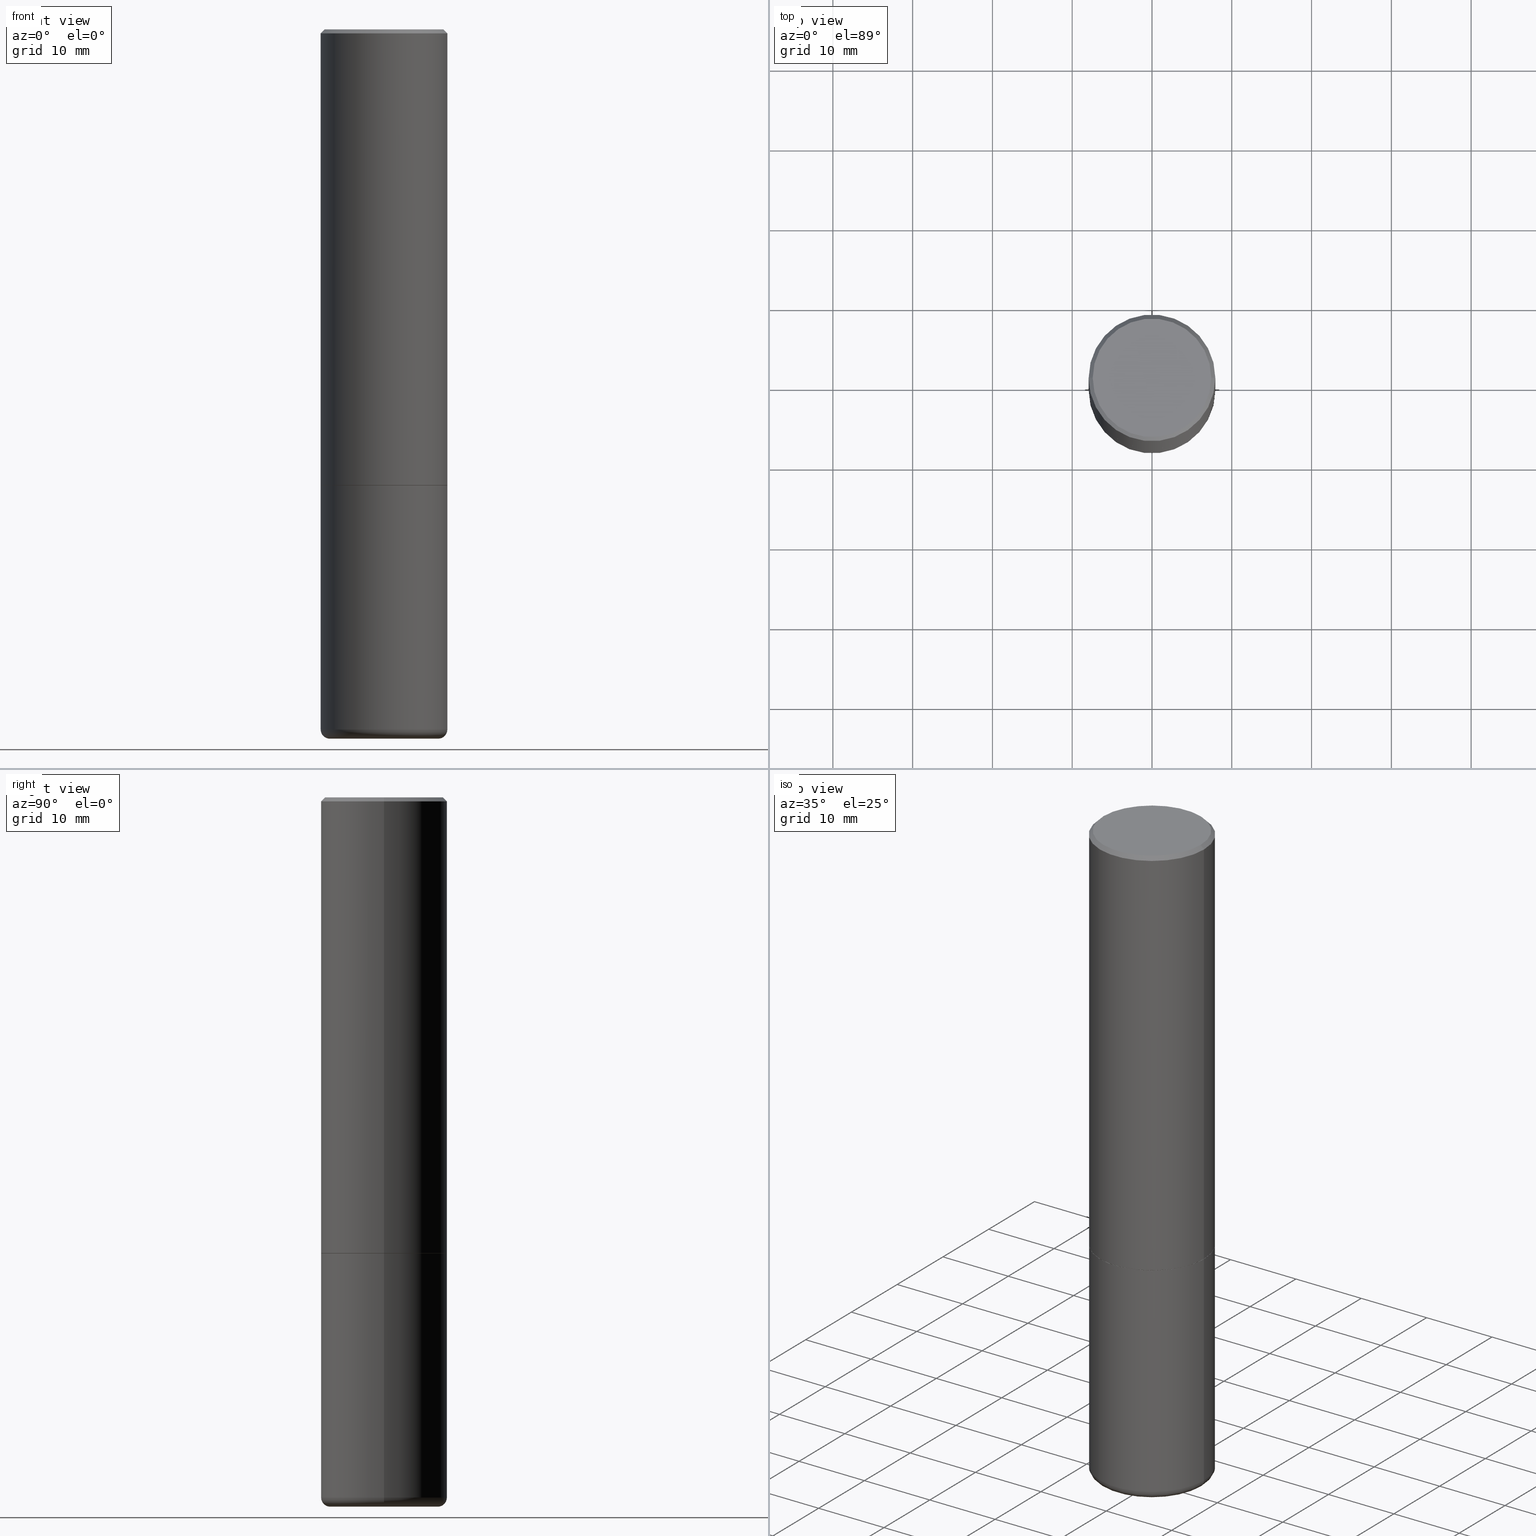
[diagram: canonical four-view strip — front | top / right | iso, engineering-drawing reading convention]
A machine part, canonical four-view strip (front | top / right | iso — engineering-drawing reading convention). The complete STEP part file that produces these views, byte-faithful:
ISO-10303-21;
HEADER;
FILE_DESCRIPTION (( 'STEP AP203' ),
    '1' );
FILE_NAME ('38080.STEP',
    '2023-03-22T20:16:06',
    ( '' ),
    ( '' ),
    'SwSTEP 2.0',
    'SolidWorks 2022',
    '' );
FILE_SCHEMA (( 'CONFIG_CONTROL_DESIGN' ));
ENDSEC;

DATA;
#1 = CARTESIAN_POINT ( 'NONE',  ( 2.042516583223231356E-15, 0.2924999999999998157, -1.019124035366569212E-15 ) ) ;
#2 = EDGE_CURVE ( 'NONE', #261, #56, #245, .T. ) ;
#3 = CARTESIAN_POINT ( 'NONE',  ( 0.3114999999999999991, -1.003102588649634920E-14, -2.249999999999999556 ) ) ;
#4 = APPROVAL_PERSON_ORGANIZATION ( #354, #66, #49 ) ;
#5 = DIRECTION ( 'NONE',  ( -2.445468806185136877E-29, 3.491481338843145188E-15, 1.000000000000000000 ) ) ;
#6 = APPROVAL ( #267, 'UNSPECIFIED' ) ;
#7 = ORIENTED_EDGE ( 'NONE', *, *, #10, .F. ) ;
#8 = CARTESIAN_POINT ( 'NONE',  ( -0.2924999999999998157, 2.077431396611662611E-15, 4.268512490086005323E-18 ) ) ;
#9 = DIRECTION ( 'NONE',  ( 2.445468806185136597E-29, -3.491481338843145583E-15, -1.000000000000000000 ) ) ;
#10 = EDGE_CURVE ( 'NONE', #17, #261, #299, .T. ) ;
#11 = DIRECTION ( 'NONE',  ( -2.445468806185136597E-29, 3.491481338843145583E-15, 1.000000000000000000 ) ) ;
#12 = ORIENTED_EDGE ( 'NONE', *, *, #169, .F. ) ;
#13 = ORIENTED_EDGE ( 'NONE', *, *, #79, .F. ) ;
#14 = DIRECTION ( 'NONE',  ( -2.445468806185136597E-29, 3.491481338843145583E-15, 1.000000000000000000 ) ) ;
#15 = DIRECTION ( 'NONE',  ( 0.9986295347545742773, -7.033825938272000278E-15, -0.05233595624293731902 ) ) ;
#16 = CIRCLE ( 'NONE', #168, 0.2651448819690678804 ) ;
#17 = VERTEX_POINT ( 'NONE', #165 ) ;
#18 = CARTESIAN_POINT ( 'NONE',  ( 0.000000000000000000, 0.000000000000000000, 0.000000000000000000 ) ) ;
#19 = LINE ( 'NONE', #301, #210 ) ;
#20 = PERSON_AND_ORGANIZATION ( #30, #316 ) ;
#21 = EDGE_LOOP ( 'NONE', ( #350, #216 ) ) ;
#22 = EDGE_CURVE ( 'NONE', #50, #425, #19, .T. ) ;
#23 = AXIS2_PLACEMENT_3D ( 'NONE', #408, #340, #273 ) ;
#24 = PRODUCT_DEFINITION_FORMATION_WITH_SPECIFIED_SOURCE ( 'ANY', '', #109, .NOT_KNOWN. ) ;
#25 = CARTESIAN_POINT ( 'NONE',  ( -0.2675000000000000155, -1.016258153046714615E-14, -3.455061670936044216 ) ) ;
#26 = APPROVAL_STATUS ( 'not_yet_approved' ) ;
#27 = CYLINDRICAL_SURFACE ( 'NONE', #352, 0.3124999999999998890 ) ;
#28 = CYLINDRICAL_SURFACE ( 'NONE', #137, 0.3125000000000000000 ) ;
#29 = EDGE_CURVE ( 'NONE', #56, #50, #180, .T. ) ;
#30 = PERSON ( 'UNSPECIFIED', 'UNSPECIFIED', 'UNSPECIFIED', ('UNSPECIFIED'), ('UNSPECIFIED'), ('UNSPECIFIED') ) ;
#31 = FACE_OUTER_BOUND ( 'NONE', #413, .T. ) ;
#32 = AXIS2_PLACEMENT_3D ( 'NONE', #253, #9, #291 ) ;
#33 = CALENDAR_DATE ( 2023, 22, 3 ) ;
#34 = DIRECTION ( 'NONE',  ( -2.445468806185136597E-29, 3.491481338843145583E-15, 1.000000000000000000 ) ) ;
#35 = EDGE_CURVE ( 'NONE', #50, #56, #375, .T. ) ;
#36 = CARTESIAN_POINT ( 'NONE',  ( 5.502304813916556222E-29, -7.855833012397076871E-15, -2.249999999999999556 ) ) ;
#37 = PRODUCT_DEFINITION ( 'UNKNOWN', '', #24, #69 ) ;
#38 = CARTESIAN_POINT ( 'NONE',  ( 5.499859345110370619E-29, -7.852341531058232286E-15, -2.248999999999999222 ) ) ;
#39 = AXIS2_PLACEMENT_3D ( 'NONE', #119, #259, #391 ) ;
#40 = ORIENTED_EDGE ( 'NONE', *, *, #435, .F. ) ;
#41 = AXIS2_PLACEMENT_3D ( 'NONE', #431, #161, #331 ) ;
#42 = DIRECTION ( 'NONE',  ( 1.000000000000000000, -6.982962677686265922E-15, 0.000000000000000000 ) ) ;
#43 = ORIENTED_EDGE ( 'NONE', *, *, #240, .T. ) ;
#44 = CARTESIAN_POINT ( 'NONE',  ( 0.3125000000000000000, -1.003800884917403364E-14, -2.249999999999999556 ) ) ;
#45 = ORIENTED_EDGE ( 'NONE', *, *, #118, .T. ) ;
#46 = EDGE_CURVE ( 'NONE', #425, #379, #423, .T. ) ;
#47 = DIRECTION ( 'NONE',  ( 1.000000000000000000, -6.982962677686265922E-15, 0.000000000000000000 ) ) ;
#48 = CONICAL_SURFACE ( 'NONE', #145, 0.3114999999999999991, 0.7853981633972775267 ) ;
#49 = APPROVAL_ROLE ( '' ) ;
#50 = VERTEX_POINT ( 'NONE', #439 ) ;
#51 = PERSON_AND_ORGANIZATION ( #30, #316 ) ;
#52 = DIRECTION ( 'NONE',  ( -2.445468806185136597E-29, 3.491481338843145583E-15, 1.000000000000000000 ) ) ;
#53 = AXIS2_PLACEMENT_3D ( 'NONE', #25, #312, #442 ) ;
#54 = CIRCLE ( 'NONE', #237, 0.3125000000000000000 ) ;
#55 = APPLICATION_PROTOCOL_DEFINITION ( 'international standard', 'config_control_design', 1994, #360 ) ;
#56 = VERTEX_POINT ( 'NONE', #277 ) ;
#57 = CARTESIAN_POINT ( 'NONE',  ( -0.3125000000000000000, -1.740639529667232739E-15, -2.248999999999999222 ) ) ;
#58 = ORIENTED_EDGE ( 'NONE', *, *, #313, .F. ) ;
#59 = ORIENTED_EDGE ( 'NONE', *, *, #22, .F. ) ;
#60 = VECTOR ( 'NONE', #5, 39.37007874015748143 ) ;
#61 = LINE ( 'NONE', #436, #173 ) ;
#62 = APPROVAL_ROLE ( '' ) ;
#63 = ADVANCED_FACE ( 'NONE', ( #142 ), #104, .F. ) ;
#64 = DIRECTION ( 'NONE',  ( -2.438088387897960049E-29, 3.491481338843145188E-15, 1.000000000000000000 ) ) ;
#65 = PERSON_AND_ORGANIZATION_ROLE ( 'creator' ) ;
#66 = APPROVAL ( #262, 'UNSPECIFIED' ) ;
#67 = CARTESIAN_POINT ( 'NONE',  ( -1.043851414335219820E-46, 1.490343170380447200E-32, 4.268512490100411279E-18 ) ) ;
#68 = DATE_AND_TIME ( #208, #114 ) ;
#69 = DESIGN_CONTEXT ( 'detailed design', #406, 'design' ) ;
#70 = CARTESIAN_POINT ( 'NONE',  ( 5.502304813916556222E-29, -7.855833012397076871E-15, -2.249999999999999556 ) ) ;
#71 = AXIS2_PLACEMENT_3D ( 'NONE', #311, #64, #97 ) ;
#72 = CC_DESIGN_APPROVAL ( #66, ( #37 ) ) ;
#73 = LINE ( 'NONE', #372, #410 ) ;
#74 = DIRECTION ( 'NONE',  ( -1.000000000000000000, 6.982962677686266711E-15, 0.000000000000000000 ) ) ;
#75 = VERTEX_POINT ( 'NONE', #206 ) ;
#76 = DIRECTION ( 'NONE',  ( -2.445468806185136597E-29, 3.491481338843145583E-15, 1.000000000000000000 ) ) ;
#77 = ORIENTED_EDGE ( 'NONE', *, *, #111, .F. ) ;
#78 = AXIS2_PLACEMENT_3D ( 'NONE', #288, #108, #412 ) ;
#79 = EDGE_CURVE ( 'NONE', #298, #225, #223, .T. ) ;
#80 = DIRECTION ( 'NONE',  ( -2.445468806185136597E-29, 3.491481338843145583E-15, 1.000000000000000000 ) ) ;
#81 = FACE_OUTER_BOUND ( 'NONE', #399, .T. ) ;
#82 = ORIENTED_EDGE ( 'NONE', *, *, #400, .T. ) ;
#83 = APPROVAL_ROLE ( '' ) ;
#84 = ORIENTED_EDGE ( 'NONE', *, *, #400, .F. ) ;
#85 = AXIS2_PLACEMENT_3D ( 'NONE', #213, #401, #278 ) ;
#86 = DIRECTION ( 'NONE',  ( 1.000000000000000000, 0.000000000000000000, 0.000000000000000000 ) ) ;
#87 = DIRECTION ( 'NONE',  ( -6.982962677686266711E-15, -1.000000000000000000, 3.491481338843145583E-15 ) ) ;
#88 = MECHANICAL_CONTEXT ( 'NONE', #360, 'mechanical' ) ;
#89 = CARTESIAN_POINT ( 'NONE',  ( 5.502304813916556222E-29, -7.855833012397075293E-15, -2.249999999999999556 ) ) ;
#90 = COORDINATED_UNIVERSAL_TIME_OFFSET ( 5, 0, .BEHIND. ) ;
#91 = EDGE_LOOP ( 'NONE', ( #422, #13, #45, #318 ) ) ;
#92 = VECTOR ( 'NONE', #172, 39.37007874015748143 ) ;
#93 = AXIS2_PLACEMENT_3D ( 'NONE', #215, #386, #115 ) ;
#94 = EDGE_CURVE ( 'NONE', #256, #167, #188, .T. ) ;
#95 = ORIENTED_EDGE ( 'NONE', *, *, #346, .T. ) ;
#96 = DIRECTION ( 'NONE',  ( -2.445468806185136597E-29, 3.491481338843145583E-15, 1.000000000000000000 ) ) ;
#97 = DIRECTION ( 'NONE',  ( 1.000000000000000000, -6.982962677686265922E-15, 4.876176775795935793E-29 ) ) ;
#98 = VECTOR ( 'NONE', #127, 39.37007874015748143 ) ;
#99 = FACE_OUTER_BOUND ( 'NONE', #263, .T. ) ;
#100 = CC_DESIGN_PERSON_AND_ORGANIZATION_ASSIGNMENT ( #366, #275, ( #440 ) ) ;
#101 = CARTESIAN_POINT ( 'NONE',  ( 0.3114999999999999991, -1.003102588649634920E-14, -2.249999999999999556 ) ) ;
#102 = CARTESIAN_POINT ( 'NONE',  ( 0.000000000000000000, 0.000000000000000000, 0.000000000000000000 ) ) ;
#103 = CIRCLE ( 'NONE', #85, 0.2924999999999998157 ) ;
#104 = PLANE ( 'NONE',  #71 ) ;
#105 = AXIS2_PLACEMENT_3D ( 'NONE', #282, #80, #221 ) ;
#106 = ADVANCED_FACE ( 'NONE', ( #345 ), #28, .T. ) ;
#107 = DIRECTION ( 'NONE',  ( -2.445468806185136597E-29, 3.491481338843145583E-15, 1.000000000000000000 ) ) ;
#108 = DIRECTION ( 'NONE',  ( -2.445468806185136597E-29, 3.491481338843145583E-15, 1.000000000000000000 ) ) ;
#109 = PRODUCT ( '38080', '38080', '', ( #88 ) ) ;
#110 = ORIENTED_EDGE ( 'NONE', *, *, #321, .T. ) ;
#111 = EDGE_CURVE ( 'NONE', #193, #50, #252, .T. ) ;
#112 = DIRECTION ( 'NONE',  ( -2.445468806185136597E-29, 3.491481338843145583E-15, 1.000000000000000000 ) ) ;
#113 = EDGE_LOOP ( 'NONE', ( #397, #228, #40, #326 ) ) ;
#114 = LOCAL_TIME ( 16, 16, 6.000000000000000000, #438 ) ;
#115 = DIRECTION ( 'NONE',  ( 1.000000000000000000, -6.982962677686266711E-15, 0.000000000000000000 ) ) ;
#116 = ORIENTED_EDGE ( 'NONE', *, *, #380, .T. ) ;
#117 = FACE_OUTER_BOUND ( 'NONE', #434, .T. ) ;
#118 = EDGE_CURVE ( 'NONE', #298, #148, #276, .T. ) ;
#119 = CARTESIAN_POINT ( 'NONE',  ( 8.449245539719989979E-29, -1.206328334862541465E-14, -3.455061670936044216 ) ) ;
#120 = CC_DESIGN_PERSON_AND_ORGANIZATION_ASSIGNMENT ( #292, #164, ( #37 ) ) ;
#121 = AXIS2_PLACEMENT_3D ( 'NONE', #249, #214, #284 ) ;
#122 =( NAMED_UNIT ( * ) PLANE_ANGLE_UNIT ( ) SI_UNIT ( $, .RADIAN. ) );
#123 = ORIENTED_EDGE ( 'NONE', *, *, #240, .F. ) ;
#124 = APPLICATION_PROTOCOL_DEFINITION ( 'international standard', 'config_control_design', 1994, #406 ) ;
#125 = ORIENTED_EDGE ( 'NONE', *, *, #441, .T. ) ;
#126 = ADVANCED_FACE ( 'NONE', ( #99 ), #374, .F. ) ;
#127 = DIRECTION ( 'NONE',  ( 0.7071067811865469066, -7.319954787623254468E-15, -0.7071067811865481278 ) ) ;
#128 = ORIENTED_EDGE ( 'NONE', *, *, #235, .T. ) ;
#129 = AXIS2_PLACEMENT_3D ( 'NONE', #341, #272, #377 ) ;
#130 = CC_DESIGN_APPROVAL ( #6, ( #24 ) ) ;
#131 = CARTESIAN_POINT ( 'NONE',  ( -0.3125000000000000000, -7.739112131260931893E-15, -2.249999999999999556 ) ) ;
#132 = ORIENTED_EDGE ( 'NONE', *, *, #46, .F. ) ;
#133 = DATE_TIME_ROLE ( 'classification_date' ) ;
#134 = DIRECTION ( 'NONE',  ( -0.9986295347545742773, 6.790662755453664522E-15, -0.05233595624293731902 ) ) ;
#135 = PERSON_AND_ORGANIZATION ( #30, #316 ) ;
#136 = DIRECTION ( 'NONE',  ( -2.445468806185136597E-29, 3.491481338843145583E-15, 1.000000000000000000 ) ) ;
#137 = AXIS2_PLACEMENT_3D ( 'NONE', #102, #140, #244 ) ;
#138 = CONICAL_SURFACE ( 'NONE', #41, 0.3124999999999998335, 0.7853981633974473908 ) ;
#139 = CARTESIAN_POINT ( 'NONE',  ( -0.3124999999999998335, 2.112346210000093866E-15, -0.02000000000000002123 ) ) ;
#140 = DIRECTION ( 'NONE',  ( -2.445468806185136597E-29, 3.491481338843145583E-15, 1.000000000000000000 ) ) ;
#141 = DATE_AND_TIME ( #238, #376 ) ;
#142 = FACE_OUTER_BOUND ( 'NONE', #233, .T. ) ;
#143 = CONICAL_SURFACE ( 'NONE', #389, 0.3114999999999999991, 0.7853981633972775267 ) ;
#144 = FACE_OUTER_BOUND ( 'NONE', #21, .T. ) ;
#145 = AXIS2_PLACEMENT_3D ( 'NONE', #317, #76, #47 ) ;
#146 = ORIENTED_EDGE ( 'NONE', *, *, #35, .T. ) ;
#147 = FACE_OUTER_BOUND ( 'NONE', #428, .T. ) ;
#148 = VERTEX_POINT ( 'NONE', #171 ) ;
#149 = EDGE_CURVE ( 'NONE', #419, #148, #209, .T. ) ;
#150 = FACE_OUTER_BOUND ( 'NONE', #387, .T. ) ;
#151 = ORIENTED_EDGE ( 'NONE', *, *, #118, .F. ) ;
#152 = DIRECTION ( 'NONE',  ( 1.000000000000000000, -6.982962677686269077E-15, 0.000000000000000000 ) ) ;
#153 = CLOSED_SHELL ( 'NONE', ( #222, #426, #407, #327, #195, #361, #63, #126 ) ) ;
#154 = AXIS2_PLACEMENT_3D ( 'NONE', #414, #257, #250 ) ;
#155 = DIRECTION ( 'NONE',  ( -2.445468806185136597E-29, 3.491481338843145583E-15, 1.000000000000000000 ) ) ;
#156 = ORIENTED_EDGE ( 'NONE', *, *, #149, .T. ) ;
#157 = EDGE_CURVE ( 'NONE', #256, #419, #437, .T. ) ;
#158 = DIRECTION ( 'NONE',  ( 1.000000000000000000, -6.982962677686269077E-15, 0.000000000000000000 ) ) ;
#159 = CARTESIAN_POINT ( 'NONE',  ( 8.449245539719989979E-29, -1.206328334862541465E-14, -3.455061670936044216 ) ) ;
#160 = CONICAL_SURFACE ( 'NONE', #32, 0.3124999999999998335, 0.7853981633974473908 ) ;
#161 = DIRECTION ( 'NONE',  ( 2.445468806185136597E-29, -3.491481338843145583E-15, -1.000000000000000000 ) ) ;
#162 = CARTESIAN_POINT ( 'NONE',  ( 0.2675000000000000155, -1.393122586490649131E-14, -3.455061670936044216 ) ) ;
#163 = CC_DESIGN_PERSON_AND_ORGANIZATION_ASSIGNMENT ( #51, #194, ( #109 ) ) ;
#164 = PERSON_AND_ORGANIZATION_ROLE ( 'creator' ) ;
#165 = CARTESIAN_POINT ( 'NONE',  ( 8.525821692348990207E-29, -1.217071987343207654E-14, -3.486104345547738514 ) ) ;
#166 = DIRECTION ( 'NONE',  ( 0.000000000000000000, 0.000000000000000000, 1.000000000000000000 ) ) ;
#167 = VERTEX_POINT ( 'NONE', #101 ) ;
#168 = AXIS2_PLACEMENT_3D ( 'NONE', #217, #112, #383 ) ;
#169 = EDGE_CURVE ( 'NONE', #17, #193, #61, .T. ) ;
#170 = CARTESIAN_POINT ( 'NONE',  ( -0.3124999999999998890, 2.220446049250312292E-15, -1.537167215704657391E-29 ) ) ;
#171 = CARTESIAN_POINT ( 'NONE',  ( -0.3124999999999998335, 2.112346210000093866E-15, -0.02000000000000002123 ) ) ;
#172 = DIRECTION ( 'NONE',  ( -2.445468806185136877E-29, 3.491481338843145188E-15, 1.000000000000000000 ) ) ;
#173 = VECTOR ( 'NONE', #134, 39.37007874015748854 ) ;
#174 = APPROVAL_DATE_TIME ( #211, #6 ) ;
#175 = AXIS2_PLACEMENT_3D ( 'NONE', #394, #14, #358 ) ;
#176 = CARTESIAN_POINT ( 'NONE',  ( 0.2924999999999998157, -2.110215457714318748E-15, 4.268512490114932791E-18 ) ) ;
#177 = EDGE_CURVE ( 'NONE', #148, #75, #342, .T. ) ;
#178 = FACE_OUTER_BOUND ( 'NONE', #234, .T. ) ;
#179 = DIRECTION ( 'NONE',  ( 1.000000000000000000, -6.982962677686269077E-15, 4.883557194083114022E-29 ) ) ;
#180 = CIRCLE ( 'NONE', #417, 0.3125000000000000000 ) ;
#181 = FACE_OUTER_BOUND ( 'NONE', #91, .T. ) ;
#182 = CIRCLE ( 'NONE', #93, 0.2651448819690678804 ) ;
#183 = ORIENTED_EDGE ( 'NONE', *, *, #29, .F. ) ;
#184 = FACE_OUTER_BOUND ( 'NONE', #251, .T. ) ;
#185 = CC_DESIGN_DATE_AND_TIME_ASSIGNMENT ( #141, #133, ( #440 ) ) ;
#186 = ORIENTED_EDGE ( 'NONE', *, *, #2, .F. ) ;
#187 = DIRECTION ( 'NONE',  ( 1.000000000000000000, -6.982962677686269077E-15, 0.000000000000000000 ) ) ;
#188 = CIRCLE ( 'NONE', #23, 0.3114999999999999991 ) ;
#189 = AXIS2_PLACEMENT_3D ( 'NONE', #18, #166, #86 ) ;
#190 = APPROVAL_PERSON_ORGANIZATION ( #205, #402, #62 ) ;
#191 = EDGE_CURVE ( 'NONE', #225, #298, #103, .T. ) ;
#192 =( CONVERSION_BASED_UNIT ( 'INCH', #227 ) LENGTH_UNIT ( ) NAMED_UNIT ( #197 ) );
#193 = VERTEX_POINT ( 'NONE', #338 ) ;
#194 = PERSON_AND_ORGANIZATION_ROLE ( 'design_owner' ) ;
#195 = ADVANCED_FACE ( 'NONE', ( #31 ), #27, .T. ) ;
#196 = ORIENTED_EDGE ( 'NONE', *, *, #388, .F. ) ;
#197 = DIMENSIONAL_EXPONENTS ( 1.000000000000000000, 0.000000000000000000, 0.000000000000000000, 0.000000000000000000, 0.000000000000000000, 0.000000000000000000, 0.000000000000000000 ) ;
#198 = CLOSED_SHELL ( 'NONE', ( #368, #393, #106, #293, #268, #248, #286 ) ) ;
#199 = AXIS2_PLACEMENT_3D ( 'NONE', #319, #384, #179 ) ;
#200 = DATE_AND_TIME ( #230, #254 ) ;
#201 = ORIENTED_EDGE ( 'NONE', *, *, #177, .F. ) ;
#202 = ORIENTED_EDGE ( 'NONE', *, *, #35, .F. ) ;
#203 = SECURITY_CLASSIFICATION_LEVEL ( 'unclassified' ) ;
#204 = CARTESIAN_POINT ( 'NONE',  ( 9.483943079349222990E-19, -1.217166826773992568E-14, -3.486104345547738514 ) ) ;
#205 = PERSON_AND_ORGANIZATION ( #30, #316 ) ;
#206 = CARTESIAN_POINT ( 'NONE',  ( 0.3124999999999998335, -2.213735251080465334E-15, -0.02000000000000002123 ) ) ;
#207 = LINE ( 'NONE', #373, #60 ) ;
#208 = CALENDAR_DATE ( 2023, 22, 3 ) ;
#209 = LINE ( 'NONE', #170, #92 ) ;
#210 = VECTOR ( 'NONE', #430, 39.37007874015748143 ) ;
#211 = DATE_AND_TIME ( #33, #218 ) ;
#212 = AXIS2_PLACEMENT_3D ( 'NONE', #36, #279, #42 ) ;
#213 = CARTESIAN_POINT ( 'NONE',  ( -1.043851414335219820E-46, 1.490343170380447200E-32, 4.268512490100411279E-18 ) ) ;
#214 = DIRECTION ( 'NONE',  ( 2.445468806185136597E-29, -3.491481338843145583E-15, -1.000000000000000000 ) ) ;
#215 = CARTESIAN_POINT ( 'NONE',  ( 8.559140821647976968E-29, -1.222018468595100934E-14, -3.500000000000000000 ) ) ;
#216 = ORIENTED_EDGE ( 'NONE', *, *, #46, .T. ) ;
#217 = CARTESIAN_POINT ( 'NONE',  ( 8.559140821647976968E-29, -1.222018468595100934E-14, -3.500000000000000000 ) ) ;
#218 = LOCAL_TIME ( 16, 16, 6.000000000000000000, #421 ) ;
#219 = ADVANCED_BREP_SHAPE_REPRESENTATION ( '38080', ( #271, #269, #189 ), #404 ) ;
#220 = FACE_OUTER_BOUND ( 'NONE', #355, .T. ) ;
#221 = DIRECTION ( 'NONE',  ( 1.000000000000000000, -6.982962677686269077E-15, 4.883557194083114022E-29 ) ) ;
#222 = ADVANCED_FACE ( 'NONE', ( #178 ), #143, .T. ) ;
#223 = CIRCLE ( 'NONE', #323, 0.2924999999999998157 ) ;
#224 = LOCAL_TIME ( 16, 16, 6.000000000000000000, #300 ) ;
#225 = VERTEX_POINT ( 'NONE', #176 ) ;
#226 = ORIENTED_EDGE ( 'NONE', *, *, #191, .F. ) ;
#227 = LENGTH_MEASURE_WITH_UNIT ( LENGTH_MEASURE( 0.02539999999999999897 ), #302 );
#228 = ORIENTED_EDGE ( 'NONE', *, *, #22, .T. ) ;
#229 = PRODUCT_RELATED_PRODUCT_CATEGORY ( 'detail', '', ( #109 ) ) ;
#230 = CALENDAR_DATE ( 2023, 22, 3 ) ;
#231 = ORIENTED_EDGE ( 'NONE', *, *, #380, .F. ) ;
#232 = APPROVAL_DATE_TIME ( #200, #66 ) ;
#233 = EDGE_LOOP ( 'NONE', ( #196, #395 ) ) ;
#234 = EDGE_LOOP ( 'NONE', ( #303, #392, #328, #58 ) ) ;
#235 = EDGE_CURVE ( 'NONE', #56, #379, #73, .T. ) ;
#236 = DIRECTION ( 'NONE',  ( 1.000000000000000000, -6.982962677686265133E-15, 0.000000000000000000 ) ) ;
#237 = AXIS2_PLACEMENT_3D ( 'NONE', #347, #155, #187 ) ;
#238 = CALENDAR_DATE ( 2023, 22, 3 ) ;
#239 = DIRECTION ( 'NONE',  ( 1.000000000000000000, -6.982962677686266711E-15, 4.876176775795935232E-29 ) ) ;
#240 = EDGE_CURVE ( 'NONE', #281, #75, #207, .T. ) ;
#241 = DIRECTION ( 'NONE',  ( 1.000000000000000000, -6.982962677686265922E-15, 0.000000000000000000 ) ) ;
#242 = COORDINATED_UNIVERSAL_TIME_OFFSET ( 5, 0, .BEHIND. ) ;
#243 = UNCERTAINTY_MEASURE_WITH_UNIT (LENGTH_MEASURE( 1.000000000000000082E-05 ), #192, 'distance_accuracy_value', 'NONE');
#244 = DIRECTION ( 'NONE',  ( 1.000000000000000000, -6.982962677686266711E-15, 4.876176775795936353E-29 ) ) ;
#245 = CIRCLE ( 'NONE', #315, 0.04499999999999999833 ) ;
#246 = TOROIDAL_SURFACE ( 'NONE', #105, 0.2675000000000000155, 0.04499999999999999140 ) ;
#247 = DIRECTION ( 'NONE',  ( -0.7071067811864267805, 7.493145998869918709E-15, 0.7071067811866682540 ) ) ;
#248 = ADVANCED_FACE ( 'NONE', ( #117 ), #246, .T. ) ;
#249 = CARTESIAN_POINT ( 'NONE',  ( 1.048034588882512041E-27, -1.496315634977850062E-13, -42.85618308570521862 ) ) ;
#250 = DIRECTION ( 'NONE',  ( -1.000000000000000000, 6.982962677686265922E-15, -4.876176775795935793E-29 ) ) ;
#251 = EDGE_LOOP ( 'NONE', ( #95, #332, #183, #186 ) ) ;
#252 = CIRCLE ( 'NONE', #53, 0.04499999999999999833 ) ;
#253 = CARTESIAN_POINT ( 'NONE',  ( 4.890937612370278413E-31, -6.982962677686297772E-17, -0.02000000000000002123 ) ) ;
#254 = LOCAL_TIME ( 16, 16, 6.000000000000000000, #90 ) ;
#255 = FACE_OUTER_BOUND ( 'NONE', #357, .T. ) ;
#256 = VERTEX_POINT ( 'NONE', #324 ) ;
#257 = DIRECTION ( 'NONE',  ( 2.438088387897960049E-29, -3.491481338843145188E-15, -1.000000000000000000 ) ) ;
#258 = CIRCLE ( 'NONE', #212, 0.3114999999999999991 ) ;
#259 = DIRECTION ( 'NONE',  ( -2.445468806185136597E-29, 3.491481338843145583E-15, 1.000000000000000000 ) ) ;
#260 = DIRECTION ( 'NONE',  ( -2.445468806185136597E-29, 3.491481338843145583E-15, 1.000000000000000000 ) ) ;
#261 = VERTEX_POINT ( 'NONE', #416 ) ;
#262 = APPROVAL_STATUS ( 'not_yet_approved' ) ;
#263 = EDGE_LOOP ( 'NONE', ( #270, #285 ) ) ;
#264 = DATE_AND_TIME ( #429, #224 ) ;
#265 = ORIENTED_EDGE ( 'NONE', *, *, #346, .F. ) ;
#266 = TOROIDAL_SURFACE ( 'NONE', #199, 0.2675000000000000155, 0.04499999999999999140 ) ;
#267 = APPROVAL_STATUS ( 'not_yet_approved' ) ;
#268 = ADVANCED_FACE ( 'NONE', ( #147 ), #420, .T. ) ;
#269 = MANIFOLD_SOLID_BREP ( 'Body-Move/Copy2[2]', #153 ) ;
#270 = ORIENTED_EDGE ( 'NONE', *, *, #79, .T. ) ;
#271 = MANIFOLD_SOLID_BREP ( 'Body-Move/Copy2[1]', #198 ) ;
#272 = DIRECTION ( 'NONE',  ( -2.445468806185136597E-29, 3.491481338843145583E-15, 1.000000000000000000 ) ) ;
#273 = DIRECTION ( 'NONE',  ( 1.000000000000000000, -6.982962677686265922E-15, 0.000000000000000000 ) ) ;
#274 = AXIS2_PLACEMENT_3D ( 'NONE', #38, #11, #152 ) ;
#275 = PERSON_AND_ORGANIZATION_ROLE ( 'classification_officer' ) ;
#276 = LINE ( 'NONE', #139, #304 ) ;
#277 = CARTESIAN_POINT ( 'NONE',  ( 0.3125000000000000000, -1.424545918540237458E-14, -3.455061670936044216 ) ) ;
#278 = DIRECTION ( 'NONE',  ( 1.000000000000000000, -6.982962677686266711E-15, 4.876067333457692840E-29 ) ) ;
#279 = DIRECTION ( 'NONE',  ( -2.445468806185136597E-29, 3.491481338843145583E-15, 1.000000000000000000 ) ) ;
#280 = CC_DESIGN_PERSON_AND_ORGANIZATION_ASSIGNMENT ( #339, #398, ( #24 ) ) ;
#281 = VERTEX_POINT ( 'NONE', #314 ) ;
#282 = CARTESIAN_POINT ( 'NONE',  ( 8.449245539719989979E-29, -1.206328334862541465E-14, -3.455061670936044216 ) ) ;
#283 = PRODUCT_DEFINITION_SHAPE ( 'NONE', 'NONE',  #37 ) ;
#284 = DIRECTION ( 'NONE',  ( -1.000000000000000000, 6.982962677686266711E-15, 0.000000000000000000 ) ) ;
#285 = ORIENTED_EDGE ( 'NONE', *, *, #191, .T. ) ;
#286 = ADVANCED_FACE ( 'NONE', ( #220 ), #289, .F. ) ;
#287 = AXIS2_PLACEMENT_3D ( 'NONE', #1, #405, #335 ) ;
#288 = CARTESIAN_POINT ( 'NONE',  ( 0.000000000000000000, 0.000000000000000000, 0.000000000000000000 ) ) ;
#289 = CONICAL_SURFACE ( 'NONE', #433, 751.2258538476612557, 1.518436449235073260 ) ;
#290 = ORIENTED_EDGE ( 'NONE', *, *, #307, .F. ) ;
#291 = DIRECTION ( 'NONE',  ( -1.000000000000000000, 6.982962677686265133E-15, 0.000000000000000000 ) ) ;
#292 = PERSON_AND_ORGANIZATION ( #30, #316 ) ;
#293 = ADVANCED_FACE ( 'NONE', ( #144 ), #351, .F. ) ;
#294 = DIRECTION ( 'NONE',  ( 1.000000000000000000, -6.982962677686269077E-15, 0.000000000000000000 ) ) ;
#295 = CARTESIAN_POINT ( 'NONE',  ( 0.000000000000000000, 0.000000000000000000, 0.000000000000000000 ) ) ;
#296 = AXIS2_PLACEMENT_3D ( 'NONE', #89, #52, #236 ) ;
#297 = CIRCLE ( 'NONE', #175, 0.3125000000000000000 ) ;
#298 = VERTEX_POINT ( 'NONE', #8 ) ;
#299 = LINE ( 'NONE', #204, #370 ) ;
#300 = COORDINATED_UNIVERSAL_TIME_OFFSET ( 5, 0, .BEHIND. ) ;
#301 = CARTESIAN_POINT ( 'NONE',  ( -0.3125000000000000000, 2.220446049250313081E-15, -1.537167215704658232E-29 ) ) ;
#302 =( LENGTH_UNIT ( ) NAMED_UNIT ( * ) SI_UNIT ( $, .METRE. ) );
#303 = ORIENTED_EDGE ( 'NONE', *, *, #388, .T. ) ;
#304 = VECTOR ( 'NONE', #305, 39.37007874015748143 ) ;
#305 = DIRECTION ( 'NONE',  ( -0.7071067811865469066, 2.468850131082250355E-15, -0.7071067811865481278 ) ) ;
#306 = CARTESIAN_POINT ( 'NONE',  ( 0.000000000000000000, 0.000000000000000000, 0.000000000000000000 ) ) ;
#307 = EDGE_CURVE ( 'NONE', #419, #281, #343, .T. ) ;
#308 = DIRECTION ( 'NONE',  ( -2.445468806185136877E-29, 3.491481338843145188E-15, 1.000000000000000000 ) ) ;
#309 = CC_DESIGN_DATE_AND_TIME_ASSIGNMENT ( #264, #364, ( #37 ) ) ;
#310 = VECTOR ( 'NONE', #247, 39.37007874015748143 ) ;
#311 = CARTESIAN_POINT ( 'NONE',  ( 5.502304813916556222E-29, -7.855833012397076871E-15, -2.249999999999999556 ) ) ;
#312 = DIRECTION ( 'NONE',  ( 7.105427357601001859E-15, 1.000000000000000000, -3.491481338843145583E-15 ) ) ;
#313 = EDGE_CURVE ( 'NONE', #167, #281, #381, .T. ) ;
#314 = CARTESIAN_POINT ( 'NONE',  ( 0.3125000000000000000, -1.003451736783519063E-14, -2.248999999999999222 ) ) ;
#315 = AXIS2_PLACEMENT_3D ( 'NONE', #162, #87, #158 ) ;
#316 = ORGANIZATION ( 'UNSPECIFIED', 'UNSPECIFIED', '' ) ;
#317 = CARTESIAN_POINT ( 'NONE',  ( 5.502304813916556222E-29, -7.855833012397076871E-15, -2.249999999999999556 ) ) ;
#318 = ORIENTED_EDGE ( 'NONE', *, *, #177, .T. ) ;
#319 = CARTESIAN_POINT ( 'NONE',  ( 8.449245539719989979E-29, -1.206328334862541465E-14, -3.455061670936044216 ) ) ;
#320 = ORIENTED_EDGE ( 'NONE', *, *, #149, .F. ) ;
#321 = EDGE_CURVE ( 'NONE', #281, #419, #54, .T. ) ;
#322 = CARTESIAN_POINT ( 'NONE',  ( 4.890937612370278413E-31, -6.982962677686297772E-17, -0.02000000000000002123 ) ) ;
#323 = AXIS2_PLACEMENT_3D ( 'NONE', #67, #136, #403 ) ;
#324 = CARTESIAN_POINT ( 'NONE',  ( -0.3114999999999999991, -5.637193936156142396E-15, -2.249999999999999556 ) ) ;
#325 = CONICAL_SURFACE ( 'NONE', #121, 751.2258538476612557, 1.518436449235073260 ) ;
#326 = ORIENTED_EDGE ( 'NONE', *, *, #235, .F. ) ;
#327 = ADVANCED_FACE ( 'NONE', ( #181 ), #160, .T. ) ;
#328 = ORIENTED_EDGE ( 'NONE', *, *, #321, .F. ) ;
#329 = CIRCLE ( 'NONE', #362, 0.3124999999999998335 ) ;
#330 = ORIENTED_EDGE ( 'NONE', *, *, #94, .T. ) ;
#331 = DIRECTION ( 'NONE',  ( -1.000000000000000000, 6.982962677686265133E-15, 0.000000000000000000 ) ) ;
#332 = ORIENTED_EDGE ( 'NONE', *, *, #111, .T. ) ;
#333 = CYLINDRICAL_SURFACE ( 'NONE', #371, 0.3124999999999998890 ) ;
#334 = ORIENTED_EDGE ( 'NONE', *, *, #10, .T. ) ;
#335 = DIRECTION ( 'NONE',  ( -1.000000000000000000, 6.982962677686265922E-15, -4.876176775795935793E-29 ) ) ;
#336 = APPROVAL_PERSON_ORGANIZATION ( #20, #6, #83 ) ;
#337 = SHAPE_DEFINITION_REPRESENTATION ( #283, #219 ) ;
#338 = CARTESIAN_POINT ( 'NONE',  ( -0.2651448819690678804, -1.008952714362760311E-14, -3.500000000000000000 ) ) ;
#339 = PERSON_AND_ORGANIZATION ( #30, #316 ) ;
#340 = DIRECTION ( 'NONE',  ( -2.445468806185136597E-29, 3.491481338843145583E-15, 1.000000000000000000 ) ) ;
#341 = CARTESIAN_POINT ( 'NONE',  ( 4.890937612370278413E-31, -6.982962677686297772E-17, -0.02000000000000002123 ) ) ;
#342 = CIRCLE ( 'NONE', #129, 0.3124999999999998335 ) ;
#343 = CIRCLE ( 'NONE', #274, 0.3125000000000000000 ) ;
#344 = APPROVAL_DATE_TIME ( #68, #402 ) ;
#345 = FACE_OUTER_BOUND ( 'NONE', #113, .T. ) ;
#346 = EDGE_CURVE ( 'NONE', #261, #193, #182, .T. ) ;
#347 = CARTESIAN_POINT ( 'NONE',  ( 5.499859345110370619E-29, -7.852341531058232286E-15, -2.248999999999999222 ) ) ;
#348 = DIRECTION ( 'NONE',  ( 2.445468806185136597E-29, -3.491481338843145583E-15, -1.000000000000000000 ) ) ;
#349 = CARTESIAN_POINT ( 'NONE',  ( 1.048034588882512041E-27, -1.496315634977850062E-13, -42.85618308570521862 ) ) ;
#350 = ORIENTED_EDGE ( 'NONE', *, *, #435, .T. ) ;
#351 = PLANE ( 'NONE',  #154 ) ;
#352 = AXIS2_PLACEMENT_3D ( 'NONE', #306, #34, #239 ) ;
#353 = CC_DESIGN_SECURITY_CLASSIFICATION ( #440, ( #24 ) ) ;
#354 = PERSON_AND_ORGANIZATION ( #30, #316 ) ;
#355 = EDGE_LOOP ( 'NONE', ( #7, #415, #265 ) ) ;
#356 = LINE ( 'NONE', #424, #98 ) ;
#357 = EDGE_LOOP ( 'NONE', ( #226, #125, #82, #151 ) ) ;
#358 = DIRECTION ( 'NONE',  ( 1.000000000000000000, -6.982962677686265133E-15, 0.000000000000000000 ) ) ;
#359 = ORIENTED_EDGE ( 'NONE', *, *, #313, .T. ) ;
#360 = APPLICATION_CONTEXT ( 'configuration controlled 3d designs of mechanical parts and assemblies' ) ;
#361 = ADVANCED_FACE ( 'NONE', ( #81 ), #48, .T. ) ;
#362 = AXIS2_PLACEMENT_3D ( 'NONE', #322, #107, #378 ) ;
#363 = ORIENTED_EDGE ( 'NONE', *, *, #2, .T. ) ;
#364 = DATE_TIME_ROLE ( 'creation_date' ) ;
#365 = EDGE_LOOP ( 'NONE', ( #110, #156, #84, #123 ) ) ;
#366 = PERSON_AND_ORGANIZATION ( #30, #316 ) ;
#367 = ORIENTED_EDGE ( 'NONE', *, *, #157, .F. ) ;
#368 = ADVANCED_FACE ( 'NONE', ( #150 ), #325, .F. ) ;
#369 = CARTESIAN_POINT ( 'NONE',  ( -0.3114999999999999991, -5.642492390504364798E-15, -2.249999999999999556 ) ) ;
#370 = VECTOR ( 'NONE', #15, 39.37007874015748854 ) ;
#371 = AXIS2_PLACEMENT_3D ( 'NONE', #295, #260, #396 ) ;
#372 = CARTESIAN_POINT ( 'NONE',  ( 0.3125000000000000000, -2.182175836776958347E-15, 1.523805242436230075E-29 ) ) ;
#373 = CARTESIAN_POINT ( 'NONE',  ( 0.3124999999999998890, -2.182175836776957558E-15, 1.523805242436229235E-29 ) ) ;
#374 = PLANE ( 'NONE',  #287 ) ;
#375 = CIRCLE ( 'NONE', #39, 0.3125000000000000000 ) ;
#376 = LOCAL_TIME ( 16, 16, 6.000000000000000000, #242 ) ;
#377 = DIRECTION ( 'NONE',  ( 1.000000000000000000, -6.982962677686265133E-15, 0.000000000000000000 ) ) ;
#378 = DIRECTION ( 'NONE',  ( 1.000000000000000000, -6.982962677686265133E-15, 0.000000000000000000 ) ) ;
#379 = VERTEX_POINT ( 'NONE', #44 ) ;
#380 = EDGE_CURVE ( 'NONE', #193, #261, #16, .T. ) ;
#381 = LINE ( 'NONE', #3, #411 ) ;
#382 = CC_DESIGN_PERSON_AND_ORGANIZATION_ASSIGNMENT ( #135, #65, ( #24 ) ) ;
#383 = DIRECTION ( 'NONE',  ( 1.000000000000000000, -6.982962677686266711E-15, 0.000000000000000000 ) ) ;
#384 = DIRECTION ( 'NONE',  ( -2.445468806185136597E-29, 3.491481338843145583E-15, 1.000000000000000000 ) ) ;
#385 = ORIENTED_EDGE ( 'NONE', *, *, #307, .T. ) ;
#386 = DIRECTION ( 'NONE',  ( -2.445468806185136597E-29, 3.491481338843145583E-15, 1.000000000000000000 ) ) ;
#387 = EDGE_LOOP ( 'NONE', ( #12, #334, #231 ) ) ;
#388 = EDGE_CURVE ( 'NONE', #167, #256, #258, .T. ) ;
#389 = AXIS2_PLACEMENT_3D ( 'NONE', #70, #409, #241 ) ;
#390 =( NAMED_UNIT ( * ) SI_UNIT ( $, .STERADIAN. ) SOLID_ANGLE_UNIT ( ) );
#391 = DIRECTION ( 'NONE',  ( 1.000000000000000000, -6.982962677686269077E-15, 0.000000000000000000 ) ) ;
#392 = ORIENTED_EDGE ( 'NONE', *, *, #157, .T. ) ;
#393 = ADVANCED_FACE ( 'NONE', ( #184 ), #266, .T. ) ;
#394 = CARTESIAN_POINT ( 'NONE',  ( 5.502304813916556222E-29, -7.855833012397075293E-15, -2.249999999999999556 ) ) ;
#395 = ORIENTED_EDGE ( 'NONE', *, *, #94, .F. ) ;
#396 = DIRECTION ( 'NONE',  ( 1.000000000000000000, -6.982962677686266711E-15, 4.876176775795935232E-29 ) ) ;
#397 = ORIENTED_EDGE ( 'NONE', *, *, #29, .T. ) ;
#398 = PERSON_AND_ORGANIZATION_ROLE ( 'design_supplier' ) ;
#399 = EDGE_LOOP ( 'NONE', ( #367, #330, #359, #290 ) ) ;
#400 = EDGE_CURVE ( 'NONE', #75, #148, #329, .T. ) ;
#401 = DIRECTION ( 'NONE',  ( -2.445468806185136597E-29, 3.491481338843145583E-15, 1.000000000000000000 ) ) ;
#402 = APPROVAL ( #26, 'UNSPECIFIED' ) ;
#403 = DIRECTION ( 'NONE',  ( 1.000000000000000000, -6.982962677686266711E-15, 4.876067333457692840E-29 ) ) ;
#404 =( GEOMETRIC_REPRESENTATION_CONTEXT ( 3 ) GLOBAL_UNCERTAINTY_ASSIGNED_CONTEXT ( ( #243 ) ) GLOBAL_UNIT_ASSIGNED_CONTEXT ( ( #192, #122, #390 ) ) REPRESENTATION_CONTEXT ( 'NONE', 'WORKASPACE' ) );
#405 = DIRECTION ( 'NONE',  ( 2.438088387897960049E-29, -3.491481338843145188E-15, -1.000000000000000000 ) ) ;
#406 = APPLICATION_CONTEXT ( 'configuration controlled 3d designs of mechanical parts and assemblies' ) ;
#407 = ADVANCED_FACE ( 'NONE', ( #255 ), #138, .T. ) ;
#408 = CARTESIAN_POINT ( 'NONE',  ( 5.502304813916556222E-29, -7.855833012397076871E-15, -2.249999999999999556 ) ) ;
#409 = DIRECTION ( 'NONE',  ( -2.445468806185136597E-29, 3.491481338843145583E-15, 1.000000000000000000 ) ) ;
#410 = VECTOR ( 'NONE', #308, 39.37007874015748143 ) ;
#411 = VECTOR ( 'NONE', #418, 39.37007874015748143 ) ;
#412 = DIRECTION ( 'NONE',  ( 1.000000000000000000, -6.982962677686266711E-15, 4.876176775795936353E-29 ) ) ;
#413 = EDGE_LOOP ( 'NONE', ( #320, #385, #43, #201 ) ) ;
#414 = CARTESIAN_POINT ( 'NONE',  ( 2.182175836777013173E-15, 0.3124999999999921729, -2.250000000000000444 ) ) ;
#415 = ORIENTED_EDGE ( 'NONE', *, *, #169, .T. ) ;
#416 = CARTESIAN_POINT ( 'NONE',  ( 0.2651448819690678804, -1.407168150092053958E-14, -3.500000000000000000 ) ) ;
#417 = AXIS2_PLACEMENT_3D ( 'NONE', #159, #96, #294 ) ;
#418 = DIRECTION ( 'NONE',  ( 0.7071067811864267805, -2.468850131080992517E-15, 0.7071067811866682540 ) ) ;
#419 = VERTEX_POINT ( 'NONE', #57 ) ;
#420 = CYLINDRICAL_SURFACE ( 'NONE', #78, 0.3125000000000000000 ) ;
#421 = COORDINATED_UNIVERSAL_TIME_OFFSET ( 5, 0, .BEHIND. ) ;
#422 = ORIENTED_EDGE ( 'NONE', *, *, #441, .F. ) ;
#423 = CIRCLE ( 'NONE', #296, 0.3125000000000000000 ) ;
#424 = CARTESIAN_POINT ( 'NONE',  ( 0.3124999999999998335, -2.213735251080465334E-15, -0.02000000000000002123 ) ) ;
#425 = VERTEX_POINT ( 'NONE', #131 ) ;
#426 = ADVANCED_FACE ( 'NONE', ( #427 ), #333, .T. ) ;
#427 = FACE_OUTER_BOUND ( 'NONE', #365, .T. ) ;
#428 = EDGE_LOOP ( 'NONE', ( #59, #146, #128, #132 ) ) ;
#429 = CALENDAR_DATE ( 2023, 22, 3 ) ;
#430 = DIRECTION ( 'NONE',  ( -2.445468806185136877E-29, 3.491481338843145188E-15, 1.000000000000000000 ) ) ;
#431 = CARTESIAN_POINT ( 'NONE',  ( 4.890937612370278413E-31, -6.982962677686297772E-17, -0.02000000000000002123 ) ) ;
#432 = CC_DESIGN_APPROVAL ( #402, ( #440 ) ) ;
#433 = AXIS2_PLACEMENT_3D ( 'NONE', #349, #348, #74 ) ;
#434 = EDGE_LOOP ( 'NONE', ( #77, #116, #363, #202 ) ) ;
#435 = EDGE_CURVE ( 'NONE', #379, #425, #297, .T. ) ;
#436 = CARTESIAN_POINT ( 'NONE',  ( -9.483943077644191432E-19, -1.217166826773992568E-14, -3.486104345547738514 ) ) ;
#437 = LINE ( 'NONE', #369, #310 ) ;
#438 = COORDINATED_UNIVERSAL_TIME_OFFSET ( 5, 0, .BEHIND. ) ;
#439 = CARTESIAN_POINT ( 'NONE',  ( -0.3125000000000000000, -7.739112131260931893E-15, -3.455061670936044216 ) ) ;
#440 = SECURITY_CLASSIFICATION ( '', '', #203 ) ;
#441 = EDGE_CURVE ( 'NONE', #225, #75, #356, .T. ) ;
#442 = DIRECTION ( 'NONE',  ( -1.000000000000000000, 7.105427357600990815E-15, 0.000000000000000000 ) ) ;
ENDSEC;
END-ISO-10303-21;
